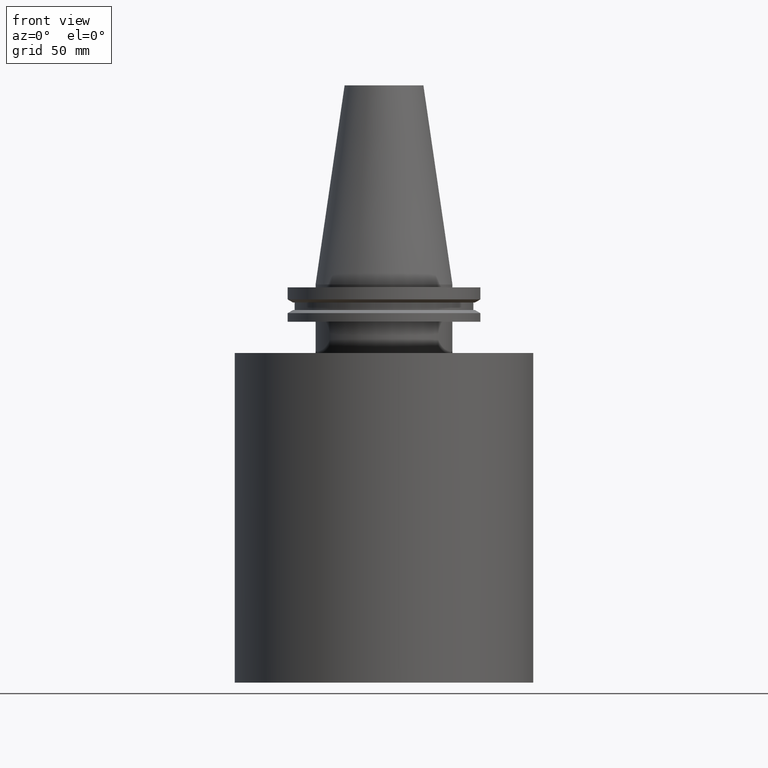
[diagram: clean part render]
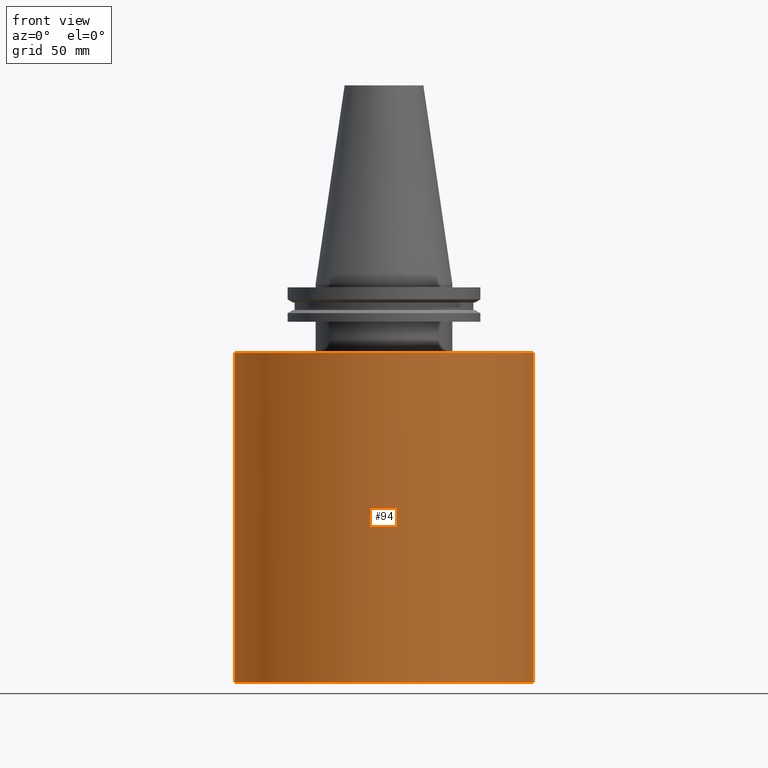
[diagram: same view with one face highlighted and labeled with its STEP entity id]
A machine part, front view. The second image highlights one B-rep face of the part: STEP entity #94.
In plain terms, the highlighted cylindrical surface (bore or boss wall) has radius 76.2 mm, axis along (-0, -0, 1).
Its self-contained STEP definition (entity closure, byte-faithful):
#3 = CARTESIAN_POINT ( 'NONE',  ( 76.20000000000000284, 0.000000000000000000, -35.00000000000000000 ) ) ;
#25 = DIRECTION ( 'NONE',  ( 1.000000000000000000, 0.000000000000000000, 0.000000000000000000 ) ) ;
#37 = VERTEX_POINT ( 'NONE', #160 ) ;
#39 = CIRCLE ( 'NONE', #237, 76.20000000000000284 ) ;
#62 = CARTESIAN_POINT ( 'NONE',  ( 0.000000000000000000, 0.000000000000000000, -203.1999999999999886 ) ) ;
#63 = EDGE_CURVE ( 'NONE', #152, #152, #39, .T. ) ;
#68 = AXIS2_PLACEMENT_3D ( 'NONE', #62, #270, #178 ) ;
#73 = DIRECTION ( 'NONE',  ( -0.000000000000000000, -0.000000000000000000, 1.000000000000000000 ) ) ;
#94 = ADVANCED_FACE ( 'NONE', ( #280, #248 ), #371, .T. ) ;
#152 = VERTEX_POINT ( 'NONE', #3 ) ;
#156 = ORIENTED_EDGE ( 'NONE', *, *, #63, .F. ) ;
#159 = DIRECTION ( 'NONE',  ( -0.000000000000000000, -0.000000000000000000, 1.000000000000000000 ) ) ;
#160 = CARTESIAN_POINT ( 'NONE',  ( 76.20000000000000284, 0.000000000000000000, -203.1999999999999886 ) ) ;
#177 = CIRCLE ( 'NONE', #68, 76.20000000000000284 ) ;
#178 = DIRECTION ( 'NONE',  ( 1.000000000000000000, 0.000000000000000000, 0.000000000000000000 ) ) ;
#184 = EDGE_LOOP ( 'NONE', ( #373 ) ) ;
#195 = AXIS2_PLACEMENT_3D ( 'NONE', #311, #159, #25 ) ;
#222 = DIRECTION ( 'NONE',  ( 1.000000000000000000, 0.000000000000000000, 0.000000000000000000 ) ) ;
#237 = AXIS2_PLACEMENT_3D ( 'NONE', #340, #73, #222 ) ;
#247 = EDGE_CURVE ( 'NONE', #37, #37, #177, .T. ) ;
#248 = FACE_OUTER_BOUND ( 'NONE', #184, .T. ) ;
#251 = EDGE_LOOP ( 'NONE', ( #156 ) ) ;
#270 = DIRECTION ( 'NONE',  ( -0.000000000000000000, -0.000000000000000000, 1.000000000000000000 ) ) ;
#280 = FACE_OUTER_BOUND ( 'NONE', #251, .T. ) ;
#311 = CARTESIAN_POINT ( 'NONE',  ( 0.000000000000000000, 0.000000000000000000, 0.000000000000000000 ) ) ;
#340 = CARTESIAN_POINT ( 'NONE',  ( 0.000000000000000000, 0.000000000000000000, -35.00000000000000000 ) ) ;
#371 = CYLINDRICAL_SURFACE ( 'NONE', #195, 76.20000000000000284 ) ;
#373 = ORIENTED_EDGE ( 'NONE', *, *, #247, .T. ) ;